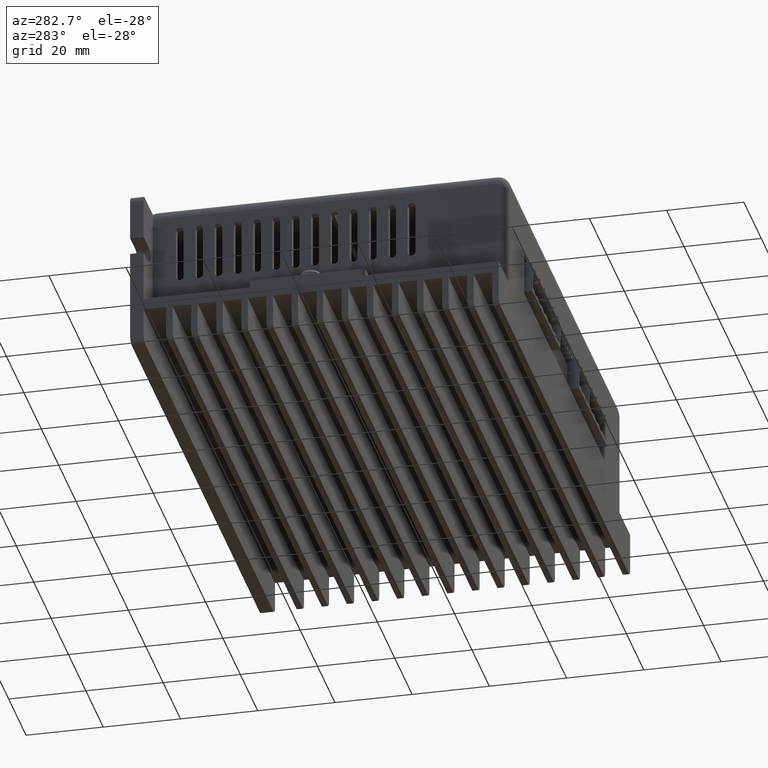
[diagram: clean part render]
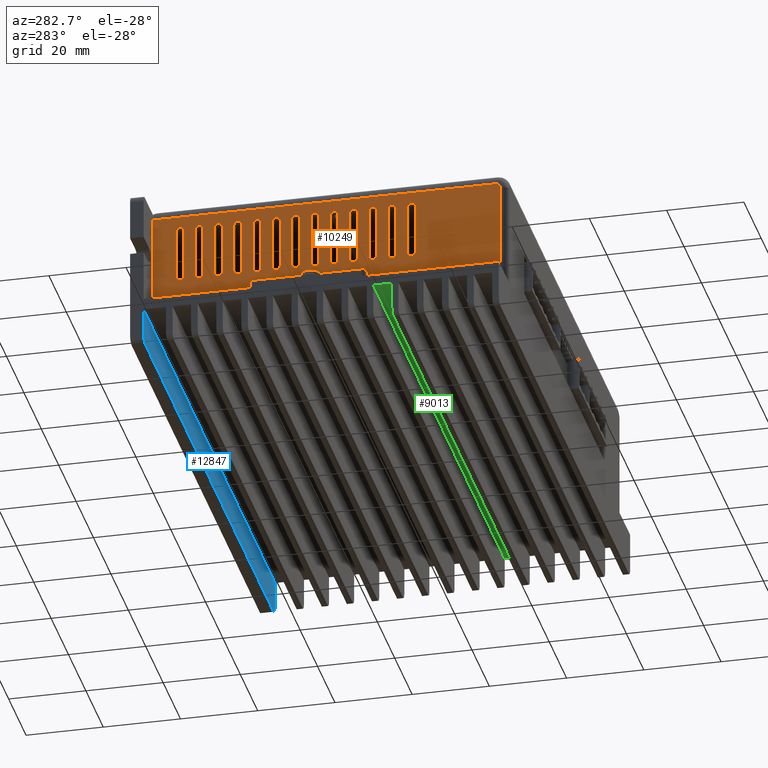
[diagram: same view with three faces highlighted in distinct colors, each labeled with its STEP entity id]
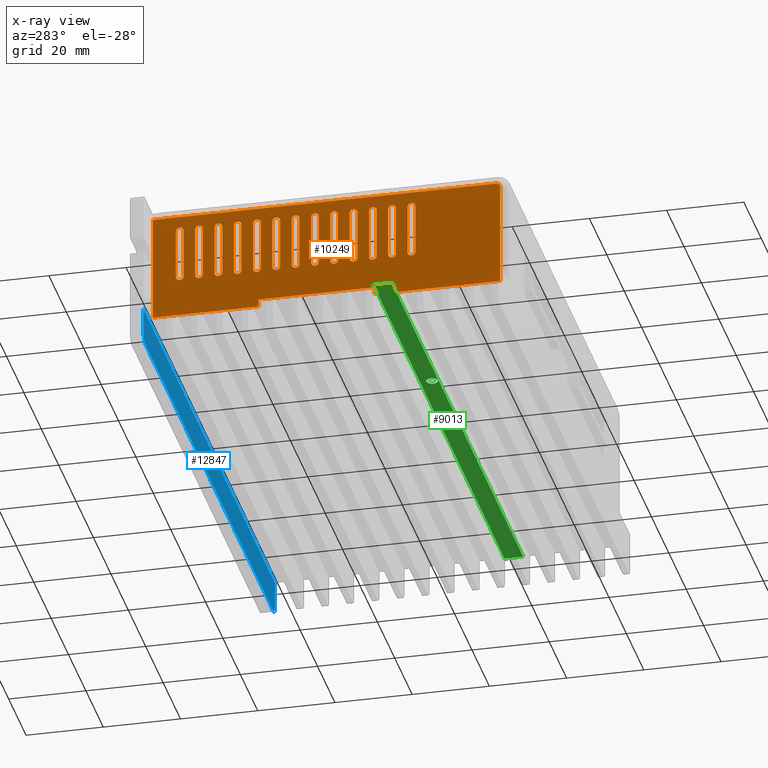
[diagram: x-ray of the same camera — body ghosted, the three highlighted faces saturated]
A machine part, auxiliary view with three faces highlighted in distinct colors.
The next image is the same camera in x-ray (body ghosted, the three faces saturated) — at least one of them is partly hidden behind the body in this view.
Their STEP definitions:

[orange] entity #10249 — the highlighted planar face has unit normal (-1, 0, 0).
#80 = EDGE_CURVE ( 'NONE', #12509, #4934, #51619, .T. ) ;
#248 = ORIENTED_EDGE ( 'NONE', *, *, #12798, .T. ) ;
#265 = ORIENTED_EDGE ( 'NONE', *, *, #8197, .T. ) ;
#309 = AXIS2_PLACEMENT_3D ( 'NONE', #28040, #31436, #53550 ) ;
#347 = CARTESIAN_POINT ( 'NONE',  ( -2.559055118110267600, -1.751968503936953900, -0.1574803149606290000 ) ) ;
#448 = DIRECTION ( 'NONE',  ( 0.0000000000000000000, 0.0000000000000000000, 1.000000000000000000 ) ) ;
#532 = ORIENTED_EDGE ( 'NONE', *, *, #19628, .T. ) ;
#636 = ORIENTED_EDGE ( 'NONE', *, *, #38316, .T. ) ;
#697 = ORIENTED_EDGE ( 'NONE', *, *, #33170, .T. ) ;
#705 = CARTESIAN_POINT ( 'NONE',  ( -2.559055118110235200, -1.734489167320140600, -0.1265175243482680200 ) ) ;
#816 = VERTEX_POINT ( 'NONE', #1440 ) ;
#971 = CARTESIAN_POINT ( 'NONE',  ( -2.559055118110207200, 0.7283464566928840000, -0.2362204724409449100 ) ) ;
#1271 = VECTOR ( 'NONE', #30748, 39.37007874015748100 ) ;
#1308 = DIRECTION ( 'NONE',  ( 0.0000000000000000000, 0.0000000000000000000, 1.000000000000000000 ) ) ;
#1328 = DIRECTION ( 'NONE',  ( 0.0000000000000000000, 0.0000000000000000000, 1.000000000000000000 ) ) ;
#1416 = CARTESIAN_POINT ( 'NONE',  ( -2.559055118110235200, -1.750444749665914800, -0.1481625983188392100 ) ) ;
#1440 = CARTESIAN_POINT ( 'NONE',  ( -2.559055118110221000, -0.2165354330708954300, -0.7874015748031496500 ) ) ;
#1498 = CARTESIAN_POINT ( 'NONE',  ( -2.559055118110207200, 1.515748031496033900, -0.2755905511811022600 ) ) ;
#1553 = VERTEX_POINT ( 'NONE', #25614 ) ;
#1582 = VECTOR ( 'NONE', #36986, 39.37007874015748100 ) ;
#1674 = LINE ( 'NONE', #16837, #31895 ) ;
#1760 = DIRECTION ( 'NONE',  ( 0.0000000000000000000, 0.0000000000000000000, 1.000000000000000000 ) ) ;
#1922 = EDGE_LOOP ( 'NONE', ( #12397, #46501, #5533, #47769, #248 ) ) ;
#1932 = ORIENTED_EDGE ( 'NONE', *, *, #37069, .T. ) ;
#2015 = CARTESIAN_POINT ( 'NONE',  ( -2.559055118110221000, -0.8070866141732577800, -0.7874015748031496500 ) ) ;
#2163 = ORIENTED_EDGE ( 'NONE', *, *, #30042, .T. ) ;
#2186 = LINE ( 'NONE', #45858, #40477 ) ;
#2187 = CARTESIAN_POINT ( 'NONE',  ( -2.559055118110221000, -0.4133858267716829000, -0.7874015748031496500 ) ) ;
#2259 = ORIENTED_EDGE ( 'NONE', *, *, #46590, .T. ) ;
#2312 = EDGE_CURVE ( 'NONE', #43673, #34380, #38569, .T. ) ;
#2317 = ORIENTED_EDGE ( 'NONE', *, *, #41120, .T. ) ;
#2336 = EDGE_CURVE ( 'NONE', #36407, #41542, #5703, .T. ) ;
#2344 = VECTOR ( 'NONE', #21528, 39.37007874015748100 ) ;
#2426 = CARTESIAN_POINT ( 'NONE',  ( -2.559055118110234800, 1.791338582677136200, -0.01574803149606303400 ) ) ;
#2508 = LINE ( 'NONE', #48767, #23958 ) ;
#2545 = ORIENTED_EDGE ( 'NONE', *, *, #44015, .T. ) ;
#2609 = LINE ( 'NONE', #25721, #45555 ) ;
#2886 = CARTESIAN_POINT ( 'NONE',  ( -2.559055118110221000, 0.09842519685036432700, -0.7874015748031486500 ) ) ;
#3094 = EDGE_CURVE ( 'NONE', #26930, #52527, #34490, .T. ) ;
#3212 = CARTESIAN_POINT ( 'NONE',  ( -2.559055118110221000, 0.1771653543306793100, -0.2755905511811022600 ) ) ;
#3248 = AXIS2_PLACEMENT_3D ( 'NONE', #53227, #40837, #14773 ) ;
#3301 = EDGE_LOOP ( 'NONE', ( #697, #28910, #8625, #38765 ) ) ;
#3315 = CARTESIAN_POINT ( 'NONE',  ( -2.559055118110234800, 0.7677165354330415200, -0.09606299212598430600 ) ) ;
#3354 = LINE ( 'NONE', #43067, #50360 ) ;
#3358 = CARTESIAN_POINT ( 'NONE',  ( -2.559055118110221000, -0.6889763779527853200, -0.7874015748031496500 ) ) ;
#3414 = AXIS2_PLACEMENT_3D ( 'NONE', #47303, #13522, #47683 ) ;
#3846 = DIRECTION ( 'NONE',  ( 1.000000000000000000, 0.0000000000000000000, 0.0000000000000000000 ) ) ;
#3895 = CARTESIAN_POINT ( 'NONE',  ( -2.559055118110221000, 0.6889763779527264800, -0.7874015748031486500 ) ) ;
#3966 = LINE ( 'NONE', #52166, #1271 ) ;
#4063 = CARTESIAN_POINT ( 'NONE',  ( -2.559055118110234800, 0.7125984251968211500, -0.09606299212598430600 ) ) ;
#4070 = AXIS2_PLACEMENT_3D ( 'NONE', #26378, #13633, #48333 ) ;
#4250 = PLANE ( 'NONE',  #46837 ) ;
#4264 = ORIENTED_EDGE ( 'NONE', *, *, #22894, .T. ) ;
#4303 = VERTEX_POINT ( 'NONE', #3358 ) ;
#4308 = VERTEX_POINT ( 'NONE', #50841 ) ;
#4350 = VECTOR ( 'NONE', #21722, 39.37007874015748100 ) ;
#4434 = DIRECTION ( 'NONE',  ( 0.0000000000000000000, 0.0000000000000000000, 1.000000000000000000 ) ) ;
#4560 = EDGE_CURVE ( 'NONE', #4303, #11930, #10858, .T. ) ;
#4630 = CARTESIAN_POINT ( 'NONE',  ( -2.559055118110234300, 1.791338582677108400, -0.1181102362204724100 ) ) ;
#4757 = EDGE_CURVE ( 'NONE', #32364, #8439, #10187, .T. ) ;
#4837 = ORIENTED_EDGE ( 'NONE', *, *, #30670, .T. ) ;
#4912 = VERTEX_POINT ( 'NONE', #33128 ) ;
#4933 = ORIENTED_EDGE ( 'NONE', *, *, #47665, .T. ) ;
#4934 = VERTEX_POINT ( 'NONE', #46077 ) ;
#5028 = CARTESIAN_POINT ( 'NONE',  ( -2.559055118110235200, -1.729042158598487200, -0.1230750698764731800 ) ) ;
#5034 = DIRECTION ( 'NONE',  ( 0.0000000000000000000, 0.0000000000000000000, -1.000000000000000000 ) ) ;
#5110 = CARTESIAN_POINT ( 'NONE',  ( -2.559055118110207200, -0.4527559055118403100, -0.7874015748031496500 ) ) ;
#5223 = CARTESIAN_POINT ( 'NONE',  ( -2.559055118110234300, -1.721970460568570400, -0.1195481933910893800 ) ) ;
#5237 = VECTOR ( 'NONE', #19826, 39.37007874015748100 ) ;
#5363 = CARTESIAN_POINT ( 'NONE',  ( -2.559055118110221000, 1.555118110236190800, -0.2755905511811022600 ) ) ;
#5520 = CARTESIAN_POINT ( 'NONE',  ( -2.559055118110207200, -0.05905511811026555000, -0.7874015748031496500 ) ) ;
#5533 = ORIENTED_EDGE ( 'NONE', *, *, #24258, .T. ) ;
#5703 = LINE ( 'NONE', #9210, #2344 ) ;
#5926 = AXIS2_PLACEMENT_3D ( 'NONE', #53170, #10258, #39868 ) ;
#5988 = EDGE_CURVE ( 'NONE', #40388, #16519, #8096, .T. ) ;
#6000 = EDGE_CURVE ( 'NONE', #10003, #7217, #54987, .T. ) ;
#6071 = DIRECTION ( 'NONE',  ( 0.0000000000000000000, 0.0000000000000000000, 1.000000000000000000 ) ) ;
#6124 = EDGE_CURVE ( 'NONE', #41542, #1553, #20807, .T. ) ;
#6207 = CARTESIAN_POINT ( 'NONE',  ( -2.559055118110207200, -0.8464566929134153000, -0.2755905511811022600 ) ) ;
#6312 = EDGE_CURVE ( 'NONE', #26166, #19570, #46994, .T. ) ;
#6398 = ORIENTED_EDGE ( 'NONE', *, *, #48146, .F. ) ;
#6440 = CARTESIAN_POINT ( 'NONE',  ( -2.559055118110221000, -0.2165354330708954300, -0.2755905511811022600 ) ) ;
#6506 = CARTESIAN_POINT ( 'NONE',  ( -2.559055118110221000, 0.09842519685036435500, -0.2755905511811022600 ) ) ;
#6583 = LINE ( 'NONE', #39317, #12608 ) ;
#6802 = EDGE_CURVE ( 'NONE', #8439, #18433, #49571, .T. ) ;
#6806 = VERTEX_POINT ( 'NONE', #46009 ) ;
#6928 = DIRECTION ( 'NONE',  ( 0.0000000000000000000, 0.0000000000000000000, 1.000000000000000000 ) ) ;
#6988 = VERTEX_POINT ( 'NONE', #55005 ) ;
#7173 = VERTEX_POINT ( 'NONE', #30399 ) ;
#7213 = DIRECTION ( 'NONE',  ( 1.000000000000000000, 0.0000000000000000000, 0.0000000000000000000 ) ) ;
#7217 = VERTEX_POINT ( 'NONE', #34178 ) ;
#7225 = AXIS2_PLACEMENT_3D ( 'NONE', #53962, #15336, #41387 ) ;
#7363 = CARTESIAN_POINT ( 'NONE',  ( -2.559055118110207200, -0.6496062992126278000, -0.2755905511811022600 ) ) ;
#7459 = CIRCLE ( 'NONE', #45894, 0.03937007874015751400 ) ;
#7616 = DIRECTION ( 'NONE',  ( -0.0000000000000000000, -1.000000000000000000, 0.0000000000000000000 ) ) ;
#7712 = AXIS2_PLACEMENT_3D ( 'NONE', #8610, #51372, #38589 ) ;
#7898 = EDGE_CURVE ( 'NONE', #22184, #9881, #48141, .T. ) ;
#7934 = CARTESIAN_POINT ( 'NONE',  ( -2.559055118110221000, -0.2952755905512105500, -0.7874015748031486500 ) ) ;
#7950 = FACE_BOUND ( 'NONE', #50140, .T. ) ;
#7954 = EDGE_CURVE ( 'NONE', #32024, #39147, #54139, .T. ) ;
#8084 = CARTESIAN_POINT ( 'NONE',  ( -2.559055118110234800, 0.09842519685036428500, -0.09606299212598430600 ) ) ;
#8096 = CIRCLE ( 'NONE', #43217, 0.03937007874015738300 ) ;
#8101 = DIRECTION ( 'NONE',  ( 1.000000000000000000, 0.0000000000000000000, 0.0000000000000000000 ) ) ;
#8197 = EDGE_CURVE ( 'NONE', #17532, #18536, #17839, .T. ) ;
#8263 = CIRCLE ( 'NONE', #7712, 0.03937007874015751400 ) ;
#8270 = CIRCLE ( 'NONE', #23418, 0.03937007874015744500 ) ;
#8439 = VERTEX_POINT ( 'NONE', #14961 ) ;
#8610 = CARTESIAN_POINT ( 'NONE',  ( -2.559055118110207200, 1.318897637795246400, -0.7874015748031496500 ) ) ;
#8625 = ORIENTED_EDGE ( 'NONE', *, *, #55092, .T. ) ;
#8784 = CARTESIAN_POINT ( 'NONE',  ( -2.559055118110207200, 1.122047244094459100, -0.2362204724409447700 ) ) ;
#8909 = DIRECTION ( 'NONE',  ( 0.0000000000000000000, 0.0000000000000000000, 1.000000000000000000 ) ) ;
#8936 = ORIENTED_EDGE ( 'NONE', *, *, #30950, .T. ) ;
#9055 = VERTEX_POINT ( 'NONE', #42271 ) ;
#9158 = DIRECTION ( 'NONE',  ( 0.0000000000000000000, 0.0000000000000000000, 1.000000000000000000 ) ) ;
#9184 = CARTESIAN_POINT ( 'NONE',  ( -2.559055118110234800, -1.749574032939600600, -0.1457981194004215600 ) ) ;
#9210 = CARTESIAN_POINT ( 'NONE',  ( -2.559055118110234800, 0.2952755905511518800, -0.09606299212598430600 ) ) ;
#9305 = LINE ( 'NONE', #3315, #48194 ) ;
#9341 = DIRECTION ( 'NONE',  ( 1.000000000000000000, 0.0000000000000000000, 0.0000000000000000000 ) ) ;
#9375 = AXIS2_PLACEMENT_3D ( 'NONE', #17291, #21755, #43513 ) ;
#9385 = VERTEX_POINT ( 'NONE', #52914 ) ;
#9387 = EDGE_CURVE ( 'NONE', #26210, #26459, #20390, .T. ) ;
#9411 = CARTESIAN_POINT ( 'NONE',  ( -2.559055118110234800, 0.9645669291338291300, -0.09606299212598430600 ) ) ;
#9458 = EDGE_LOOP ( 'NONE', ( #54434, #15582, #8936, #23255, #265 ) ) ;
#9511 = DIRECTION ( 'NONE',  ( 0.0000000000000000000, 0.0000000000000000000, 1.000000000000000000 ) ) ;
#9513 = CARTESIAN_POINT ( 'NONE',  ( -2.559055118110221000, 1.161417322834616700, -0.2755905511811022600 ) ) ;
#9535 = EDGE_CURVE ( 'NONE', #13638, #30891, #30390, .T. ) ;
#9618 = DIRECTION ( 'NONE',  ( 0.0000000000000000000, 0.0000000000000000000, 1.000000000000000000 ) ) ;
#9691 = EDGE_CURVE ( 'NONE', #34380, #51776, #12975, .T. ) ;
#9881 = VERTEX_POINT ( 'NONE', #2187 ) ;
#9885 = LINE ( 'NONE', #4063, #30617 ) ;
#9919 = DIRECTION ( 'NONE',  ( 1.000000000000000000, 0.0000000000000000000, 0.0000000000000000000 ) ) ;
#9962 = EDGE_CURVE ( 'NONE', #51952, #53671, #37458, .T. ) ;
#10003 = VERTEX_POINT ( 'NONE', #40111 ) ;
#10187 = CIRCLE ( 'NONE', #14042, 0.03937007874015751400 ) ;
#10190 = EDGE_CURVE ( 'NONE', #7173, #9385, #9305, .T. ) ;
#10249 = ADVANCED_FACE ( 'NONE', ( #46833, #22642, #38115, #34083, #15297, #50893, #25351, #32715, #29381, #13954, #19334, #7950, #11258, #55557 ), #4250, .T. ) ;
#10258 = DIRECTION ( 'NONE',  ( 1.000000000000000000, 0.0000000000000000000, 0.0000000000000000000 ) ) ;
#10288 = EDGE_CURVE ( 'NONE', #36078, #26930, #6583, .T. ) ;
#10858 = CIRCLE ( 'NONE', #18731, 0.03937007874015751400 ) ;
#10932 = EDGE_CURVE ( 'NONE', #25470, #36078, #9885, .T. ) ;
#11042 = CARTESIAN_POINT ( 'NONE',  ( -2.559055118110234800, -0.8858267716535727100, -0.09606299212598430600 ) ) ;
#11258 = FACE_BOUND ( 'NONE', #30401, .T. ) ;
#11289 = CIRCLE ( 'NONE', #3248, 0.03937007874015738300 ) ;
#11361 = EDGE_LOOP ( 'NONE', ( #33944, #49486, #532, #26530 ) ) ;
#11365 = DIRECTION ( 'NONE',  ( 1.000000000000000000, -0.0000000000000000000, 0.0000000000000000000 ) ) ;
#11445 = DIRECTION ( 'NONE',  ( 1.000000000000000000, -0.0000000000000000000, 0.0000000000000000000 ) ) ;
#11496 = EDGE_CURVE ( 'NONE', #20573, #32364, #29225, .T. ) ;
#11782 = ORIENTED_EDGE ( 'NONE', *, *, #37200, .T. ) ;
#11803 = DIRECTION ( 'NONE',  ( -0.0000000000000000000, -0.0000000000000000000, -1.000000000000000000 ) ) ;
#11865 = VECTOR ( 'NONE', #52339, 39.37007874015748100 ) ;
#11930 = VERTEX_POINT ( 'NONE', #46355 ) ;
#12051 = CARTESIAN_POINT ( 'NONE',  ( -2.559055118110221000, 1.476377952755875800, -0.7874015748031496500 ) ) ;
#12107 = CARTESIAN_POINT ( 'NONE',  ( -2.559055118110221000, 1.555118110236191300, -0.7874015748031496500 ) ) ;
#12327 = ORIENTED_EDGE ( 'NONE', *, *, #9691, .T. ) ;
#12397 = ORIENTED_EDGE ( 'NONE', *, *, #36405, .T. ) ;
#12509 = VERTEX_POINT ( 'NONE', #54343 ) ;
#12568 = CARTESIAN_POINT ( 'NONE',  ( -2.559055118110234800, -0.4921259842519979400, -0.09606299212598430600 ) ) ;
#12579 = CIRCLE ( 'NONE', #49351, 0.03937007874015738300 ) ;
#12608 = VECTOR ( 'NONE', #22226, 39.37007874015748100 ) ;
#12798 = EDGE_CURVE ( 'NONE', #11930, #6988, #23772, .T. ) ;
#12800 = ORIENTED_EDGE ( 'NONE', *, *, #51771, .T. ) ;
#12932 = CARTESIAN_POINT ( 'NONE',  ( -2.559055118110221000, 1.279527559055088700, -0.2755905511811023200 ) ) ;
#12975 = CIRCLE ( 'NONE', #42491, 0.03937007874015738300 ) ;
#13107 = AXIS2_PLACEMENT_3D ( 'NONE', #28422, #11365, #14935 ) ;
#13217 = VERTEX_POINT ( 'NONE', #29382 ) ;
#13235 = CARTESIAN_POINT ( 'NONE',  ( -2.559055118110207200, -0.2559055118110529800, -0.7874015748031496500 ) ) ;
#13244 = CIRCLE ( 'NONE', #27725, 0.03937007874015738300 ) ;
#13487 = CARTESIAN_POINT ( 'NONE',  ( -2.559055118110207200, -0.6496062992126278000, -0.7874015748031496500 ) ) ;
#13494 = VERTEX_POINT ( 'NONE', #40220 ) ;
#13522 = DIRECTION ( 'NONE',  ( 1.000000000000000000, -0.0000000000000000000, 0.0000000000000000000 ) ) ;
#13528 = CIRCLE ( 'NONE', #14005, 0.03937007874015751400 ) ;
#13633 = DIRECTION ( 'NONE',  ( 1.000000000000000000, 0.0000000000000000000, 0.0000000000000000000 ) ) ;
#13638 = VERTEX_POINT ( 'NONE', #16593 ) ;
#13747 = DIRECTION ( 'NONE',  ( -0.0000000000000000000, -1.000000000000000000, -0.0000000000000000000 ) ) ;
#13816 = CARTESIAN_POINT ( 'NONE',  ( -2.559055118110207200, 0.5314960629920967300, -0.2755905511811022600 ) ) ;
#13954 = FACE_BOUND ( 'NONE', #35525, .T. ) ;
#14005 = AXIS2_PLACEMENT_3D ( 'NONE', #13235, #34239, #21454 ) ;
#14042 = AXIS2_PLACEMENT_3D ( 'NONE', #27137, #9919, #5034 ) ;
#14095 = ORIENTED_EDGE ( 'NONE', *, *, #80, .T. ) ;
#14399 = AXIS2_PLACEMENT_3D ( 'NONE', #54671, #3846, #33675 ) ;
#14595 = DIRECTION ( 'NONE',  ( -0.0000000000000000000, -0.0000000000000000000, -1.000000000000000000 ) ) ;
#14628 = LINE ( 'NONE', #44357, #52903 ) ;
#14686 = VERTEX_POINT ( 'NONE', #27682 ) ;
#14773 = DIRECTION ( 'NONE',  ( 0.0000000000000000000, 0.0000000000000000000, 1.000000000000000000 ) ) ;
#14935 = DIRECTION ( 'NONE',  ( 0.0000000000000000000, 0.0000000000000000000, 1.000000000000000000 ) ) ;
#14961 = CARTESIAN_POINT ( 'NONE',  ( -2.559055118110207200, 1.122047244094459100, -0.8267716535433071700 ) ) ;
#15268 = EDGE_CURVE ( 'NONE', #53191, #42088, #40227, .T. ) ;
#15297 = FACE_BOUND ( 'NONE', #38943, .T. ) ;
#15336 = DIRECTION ( 'NONE',  ( 1.000000000000000000, -0.0000000000000000000, 0.0000000000000000000 ) ) ;
#15582 = ORIENTED_EDGE ( 'NONE', *, *, #5988, .T. ) ;
#15628 = DIRECTION ( 'NONE',  ( 1.000000000000000000, 0.0000000000000000000, 0.0000000000000000000 ) ) ;
#16112 = EDGE_CURVE ( 'NONE', #816, #54475, #3354, .T. ) ;
#16141 = EDGE_CURVE ( 'NONE', #18536, #40388, #1674, .T. ) ;
#16229 = CARTESIAN_POINT ( 'NONE',  ( -2.559055118110234800, 1.555118110236190800, -0.09606299212598430600 ) ) ;
#16342 = CIRCLE ( 'NONE', #309, 0.03937007874015751400 ) ;
#16446 = ORIENTED_EDGE ( 'NONE', *, *, #24530, .T. ) ;
#16519 = VERTEX_POINT ( 'NONE', #25726 ) ;
#16524 = ORIENTED_EDGE ( 'NONE', *, *, #52959, .T. ) ;
#16550 = LINE ( 'NONE', #19200, #36571 ) ;
#16586 = EDGE_CURVE ( 'NONE', #9881, #6806, #55349, .T. ) ;
#16593 = CARTESIAN_POINT ( 'NONE',  ( -2.559055118110221000, -0.6102362204724701700, -0.2755905511811022600 ) ) ;
#16787 = CIRCLE ( 'NONE', #23520, 0.03937007874015751400 ) ;
#16837 = CARTESIAN_POINT ( 'NONE',  ( -2.559055118110234800, -0.8070866141732576700, -0.09606299212598430600 ) ) ;
#17173 = CARTESIAN_POINT ( 'NONE',  ( -2.559055118110221000, 0.1771653543306793100, -0.7874015748031496500 ) ) ;
#17224 = CARTESIAN_POINT ( 'NONE',  ( -2.559055118110221000, 1.082677165354301300, -0.7874015748031496500 ) ) ;
#17291 = CARTESIAN_POINT ( 'NONE',  ( -2.559055118110207200, 1.515748031496033900, -0.7874015748031496500 ) ) ;
#17318 = AXIS2_PLACEMENT_3D ( 'NONE', #44508, #33055, #53129 ) ;
#17368 = VECTOR ( 'NONE', #44817, 39.37007874015748100 ) ;
#17466 = ORIENTED_EDGE ( 'NONE', *, *, #44435, .T. ) ;
#17474 = EDGE_LOOP ( 'NONE', ( #26714, #22308, #47910, #54735, #27726, #636, #6398, #32205, #51458 ) ) ;
#17532 = VERTEX_POINT ( 'NONE', #46038 ) ;
#17839 = CIRCLE ( 'NONE', #41158, 0.03937007874015765300 ) ;
#17959 = ORIENTED_EDGE ( 'NONE', *, *, #23738, .T. ) ;
#18154 = CARTESIAN_POINT ( 'NONE',  ( -2.559055118110235200, -1.751533145573807700, -0.1516937390262550800 ) ) ;
#18330 = CARTESIAN_POINT ( 'NONE',  ( -2.559055118110235200, -1.717251227736289200, -0.1182866763648655900 ) ) ;
#18354 = DIRECTION ( 'NONE',  ( 1.000000000000000000, 0.0000000000000000000, 0.0000000000000000000 ) ) ;
#18417 = LINE ( 'NONE', #40755, #1582 ) ;
#18433 = VERTEX_POINT ( 'NONE', #18559 ) ;
#18536 = VERTEX_POINT ( 'NONE', #2015 ) ;
#18540 = DIRECTION ( 'NONE',  ( 0.0000000000000000000, 0.0000000000000000000, -1.000000000000000000 ) ) ;
#18559 = CARTESIAN_POINT ( 'NONE',  ( -2.559055118110221000, 1.161417322834616500, -0.7874015748031486500 ) ) ;
#18585 = LINE ( 'NONE', #12568, #11865 ) ;
#18620 = CARTESIAN_POINT ( 'NONE',  ( -2.559055118110207200, -0.05905511811026555000, -0.8267716535433071700 ) ) ;
#18731 = AXIS2_PLACEMENT_3D ( 'NONE', #13487, #47819, #52485 ) ;
#18998 = CARTESIAN_POINT ( 'NONE',  ( -2.559055118110207200, -0.4527559055118403100, -0.2755905511811022600 ) ) ;
#19104 = DIRECTION ( 'NONE',  ( -0.0000000000000000000, -0.0000000000000000000, -1.000000000000000000 ) ) ;
#19196 = CARTESIAN_POINT ( 'NONE',  ( -2.559055118110221000, -0.4921259842519979400, -0.7874015748031486500 ) ) ;
#19200 = CARTESIAN_POINT ( 'NONE',  ( -2.559055118110234800, 1.476377952755875800, -0.09606299212598430600 ) ) ;
#19212 = EDGE_CURVE ( 'NONE', #22042, #13217, #34847, .T. ) ;
#19334 = FACE_BOUND ( 'NONE', #28016, .T. ) ;
#19427 = VERTEX_POINT ( 'NONE', #3212 ) ;
#19519 = EDGE_CURVE ( 'NONE', #42088, #35314, #35496, .T. ) ;
#19528 = EDGE_CURVE ( 'NONE', #9385, #31457, #23362, .T. ) ;
#19570 = VERTEX_POINT ( 'NONE', #51795 ) ;
#19628 = EDGE_CURVE ( 'NONE', #39176, #45344, #2609, .T. ) ;
#19777 = DIRECTION ( 'NONE',  ( 0.0000000000000000000, 0.0000000000000000000, 1.000000000000000000 ) ) ;
#19826 = DIRECTION ( 'NONE',  ( 0.0000000000000000000, 0.0000000000000000000, 1.000000000000000000 ) ) ;
#19943 = EDGE_LOOP ( 'NONE', ( #37078, #37148, #22070, #37047, #38460 ) ) ;
#20033 = CARTESIAN_POINT ( 'NONE',  ( -2.559055118110234800, -0.6102362204724701700, -0.09606299212598430600 ) ) ;
#20217 = CARTESIAN_POINT ( 'NONE',  ( -2.559055118110234800, 0.7125984251968211500, -1.220472440944881900 ) ) ;
#20237 = CARTESIAN_POINT ( 'NONE',  ( -2.559055118110207200, -0.8464566929134153000, -0.7874015748031496500 ) ) ;
#20267 = DIRECTION ( 'NONE',  ( 0.0000000000000000000, 0.0000000000000000000, -1.000000000000000000 ) ) ;
#20390 = CIRCLE ( 'NONE', #54713, 0.03937007874015751400 ) ;
#20486 = DIRECTION ( 'NONE',  ( -0.0000000000000000000, -0.0000000000000000000, -1.000000000000000000 ) ) ;
#20541 = DIRECTION ( 'NONE',  ( 0.0000000000000000000, 0.0000000000000000000, -1.000000000000000000 ) ) ;
#20572 = DIRECTION ( 'NONE',  ( 0.0000000000000000000, 0.0000000000000000000, 1.000000000000000000 ) ) ;
#20573 = VERTEX_POINT ( 'NONE', #36657 ) ;
#20807 = CIRCLE ( 'NONE', #32760, 0.03937007874015751400 ) ;
#21361 = DIRECTION ( 'NONE',  ( 0.0000000000000000000, 0.0000000000000000000, 1.000000000000000000 ) ) ;
#21454 = DIRECTION ( 'NONE',  ( 0.0000000000000000000, 0.0000000000000000000, 1.000000000000000000 ) ) ;
#21528 = DIRECTION ( 'NONE',  ( -0.0000000000000000000, -0.0000000000000000000, -1.000000000000000000 ) ) ;
#21722 = DIRECTION ( 'NONE',  ( -0.0000000000000000000, -0.0000000000000000000, -1.000000000000000000 ) ) ;
#21755 = DIRECTION ( 'NONE',  ( 1.000000000000000000, 0.0000000000000000000, 0.0000000000000000000 ) ) ;
#22042 = VERTEX_POINT ( 'NONE', #39839 ) ;
#22070 = ORIENTED_EDGE ( 'NONE', *, *, #52183, .T. ) ;
#22073 = CARTESIAN_POINT ( 'NONE',  ( -2.559055118110234300, -1.737496953399756400, -0.1290606951162025200 ) ) ;
#22127 = AXIS2_PLACEMENT_3D ( 'NONE', #44329, #22927, #31576 ) ;
#22184 = VERTEX_POINT ( 'NONE', #19196 ) ;
#22226 = DIRECTION ( 'NONE',  ( -0.0000000000000000000, -1.000000000000000000, 0.0000000000000000000 ) ) ;
#22231 = DIRECTION ( 'NONE',  ( 0.0000000000000000000, 0.0000000000000000000, -1.000000000000000000 ) ) ;
#22308 = ORIENTED_EDGE ( 'NONE', *, *, #10288, .T. ) ;
#22375 = AXIS2_PLACEMENT_3D ( 'NONE', #39084, #31193, #39998 ) ;
#22405 = ORIENTED_EDGE ( 'NONE', *, *, #39590, .T. ) ;
#22432 = CARTESIAN_POINT ( 'NONE',  ( -2.559055118110235200, -1.749031037788109300, -0.1445386195744914600 ) ) ;
#22511 = CARTESIAN_POINT ( 'NONE',  ( -2.559055118110234800, 0.8858267716535140900, -0.09606299212598430600 ) ) ;
#22541 = ORIENTED_EDGE ( 'NONE', *, *, #7898, .T. ) ;
#22564 = LINE ( 'NONE', #11042, #30646 ) ;
#22642 = FACE_BOUND ( 'NONE', #1922, .T. ) ;
#22766 = LINE ( 'NONE', #27988, #38236 ) ;
#22804 = CARTESIAN_POINT ( 'NONE',  ( -2.559055118110240100, -1.712598425196888000, -0.1181102362204881900 ) ) ;
#22894 = EDGE_CURVE ( 'NONE', #26474, #4912, #48093, .T. ) ;
#22917 = CARTESIAN_POINT ( 'NONE',  ( -2.559055118110221000, 1.358267716535404200, -0.7874015748031496500 ) ) ;
#22927 = DIRECTION ( 'NONE',  ( 1.000000000000000000, -0.0000000000000000000, 0.0000000000000000000 ) ) ;
#23009 = CARTESIAN_POINT ( 'NONE',  ( -2.559055118110234800, 0.6889763779527264800, -0.09606299212598430600 ) ) ;
#23255 = ORIENTED_EDGE ( 'NONE', *, *, #52564, .T. ) ;
#23281 = CARTESIAN_POINT ( 'NONE',  ( -2.559055118110221000, 0.6889763779527264800, -0.2755905511811022600 ) ) ;
#23362 = CIRCLE ( 'NONE', #3414, 0.03937007874015738300 ) ;
#23418 = AXIS2_PLACEMENT_3D ( 'NONE', #36230, #53849, #23819 ) ;
#23520 = AXIS2_PLACEMENT_3D ( 'NONE', #37624, #33309, #20541 ) ;
#23705 = ORIENTED_EDGE ( 'NONE', *, *, #32022, .T. ) ;
#23738 = EDGE_CURVE ( 'NONE', #35314, #10003, #38535, .T. ) ;
#23769 = VERTEX_POINT ( 'NONE', #12051 ) ;
#23772 = CIRCLE ( 'NONE', #5926, 0.03937007874015751400 ) ;
#23819 = DIRECTION ( 'NONE',  ( 0.0000000000000000000, 0.0000000000000000000, -1.000000000000000000 ) ) ;
#23958 = VECTOR ( 'NONE', #27916, 39.37007874015748100 ) ;
#24258 = EDGE_CURVE ( 'NONE', #30891, #4303, #44512, .T. ) ;
#24432 = ORIENTED_EDGE ( 'NONE', *, *, #39992, .T. ) ;
#24530 = EDGE_CURVE ( 'NONE', #39147, #44631, #8263, .T. ) ;
#25196 = DIRECTION ( 'NONE',  ( -0.0000000000000000000, -0.0000000000000000000, -1.000000000000000000 ) ) ;
#25351 = FACE_BOUND ( 'NONE', #31943, .T. ) ;
#25428 = VECTOR ( 'NONE', #33531, 39.37007874015748100 ) ;
#25462 = CARTESIAN_POINT ( 'NONE',  ( -2.559055118110221000, 1.358267716535404200, -0.2755905511811022600 ) ) ;
#25470 = VERTEX_POINT ( 'NONE', #20217 ) ;
#25509 = DIRECTION ( 'NONE',  ( 1.000000000000000000, -0.0000000000000000000, 0.0000000000000000000 ) ) ;
#25519 = CARTESIAN_POINT ( 'NONE',  ( -2.559055118110207200, 0.7283464566928840000, -0.2755905511811022600 ) ) ;
#25604 = VERTEX_POINT ( 'NONE', #45729 ) ;
#25614 = CARTESIAN_POINT ( 'NONE',  ( -2.559055118110207200, 0.3346456692913094000, -0.8267716535433071700 ) ) ;
#25721 = CARTESIAN_POINT ( 'NONE',  ( -2.559055118110234800, -0.2952755905512106100, -0.09606299212598430600 ) ) ;
#25726 = CARTESIAN_POINT ( 'NONE',  ( -2.559055118110207200, -0.8464566929134153000, -0.2362204724409449100 ) ) ;
#25876 = LINE ( 'NONE', #20033, #51410 ) ;
#26166 = VERTEX_POINT ( 'NONE', #29535 ) ;
#26210 = VERTEX_POINT ( 'NONE', #5363 ) ;
#26278 = ORIENTED_EDGE ( 'NONE', *, *, #6802, .T. ) ;
#26378 = CARTESIAN_POINT ( 'NONE',  ( -2.559055118110207200, 0.3346456692913094000, -0.7874015748031496500 ) ) ;
#26399 = CARTESIAN_POINT ( 'NONE',  ( -2.559055118110235200, -1.731251599634604500, -0.1243958518905019800 ) ) ;
#26442 = EDGE_CURVE ( 'NONE', #53671, #7173, #42274, .T. ) ;
#26457 = DIRECTION ( 'NONE',  ( 0.0000000000000000000, 0.0000000000000000000, 1.000000000000000000 ) ) ;
#26459 = VERTEX_POINT ( 'NONE', #45053 ) ;
#26474 = VERTEX_POINT ( 'NONE', #46003 ) ;
#26530 = ORIENTED_EDGE ( 'NONE', *, *, #39251, .T. ) ;
#26664 = DIRECTION ( 'NONE',  ( 1.000000000000000000, -0.0000000000000000000, 0.0000000000000000000 ) ) ;
#26714 = ORIENTED_EDGE ( 'NONE', *, *, #10932, .T. ) ;
#26739 = AXIS2_PLACEMENT_3D ( 'NONE', #41982, #29579, #50636 ) ;
#26930 = VERTEX_POINT ( 'NONE', #48232 ) ;
#27006 = CARTESIAN_POINT ( 'NONE',  ( -2.559055118110234800, -0.4133858267716829000, -0.09606299212598430600 ) ) ;
#27054 = ORIENTED_EDGE ( 'NONE', *, *, #53681, .T. ) ;
#27056 = EDGE_CURVE ( 'NONE', #13494, #30914, #30147, .T. ) ;
#27137 = CARTESIAN_POINT ( 'NONE',  ( -2.559055118110207200, 1.122047244094459100, -0.7874015748031496500 ) ) ;
#27682 = CARTESIAN_POINT ( 'NONE',  ( -2.559055118110221000, 0.5708661417322540300, -0.7874015748031496500 ) ) ;
#27725 = AXIS2_PLACEMENT_3D ( 'NONE', #51903, #39126, #9158 ) ;
#27726 = ORIENTED_EDGE ( 'NONE', *, *, #6312, .T. ) ;
#27916 = DIRECTION ( 'NONE',  ( -0.0000000000000000000, -1.000000000000000000, 0.0000000000000000000 ) ) ;
#27925 = VERTEX_POINT ( 'NONE', #18620 ) ;
#27988 = CARTESIAN_POINT ( 'NONE',  ( -2.559055118110234800, 0.1771653543306793100, -0.09606299212598430600 ) ) ;
#28016 = EDGE_LOOP ( 'NONE', ( #4933, #1932, #37267, #43427, #43501, #26278 ) ) ;
#28040 = CARTESIAN_POINT ( 'NONE',  ( -2.559055118110207200, 1.515748031496033900, -0.7874015748031496500 ) ) ;
#28094 = CARTESIAN_POINT ( 'NONE',  ( -2.559055118110221000, 0.2952755905511518800, -0.2755905511811022600 ) ) ;
#28422 = CARTESIAN_POINT ( 'NONE',  ( -2.559055118110207200, 0.3346456692913094000, -0.2755905511811022600 ) ) ;
#28437 = ORIENTED_EDGE ( 'NONE', *, *, #7954, .T. ) ;
#28630 = CARTESIAN_POINT ( 'NONE',  ( -2.559055118110234800, -1.751968503937037200, -0.09606299212598430600 ) ) ;
#28846 = CARTESIAN_POINT ( 'NONE',  ( -2.559055118110221000, -0.8070866141732577800, -0.2755905511811022600 ) ) ;
#28910 = ORIENTED_EDGE ( 'NONE', *, *, #32494, .T. ) ;
#29225 = LINE ( 'NONE', #50550, #40631 ) ;
#29234 = AXIS2_PLACEMENT_3D ( 'NONE', #5110, #26664, #9618 ) ;
#29373 = VECTOR ( 'NONE', #13747, 39.37007874015748100 ) ;
#29381 = FACE_BOUND ( 'NONE', #19943, .T. ) ;
#29382 = CARTESIAN_POINT ( 'NONE',  ( -2.559055118110221000, -0.4921259842519979400, -0.2755905511811022600 ) ) ;
#29535 = CARTESIAN_POINT ( 'NONE',  ( -2.559055118110234800, -1.751968503937037200, -1.220472440944881900 ) ) ;
#29579 = DIRECTION ( 'NONE',  ( 1.000000000000000000, 0.0000000000000000000, 0.0000000000000000000 ) ) ;
#29696 = ORIENTED_EDGE ( 'NONE', *, *, #9387, .T. ) ;
#30041 = EDGE_CURVE ( 'NONE', #44024, #37219, #3966, .T. ) ;
#30042 = EDGE_CURVE ( 'NONE', #23769, #9055, #44913, .T. ) ;
#30147 = LINE ( 'NONE', #2426, #17368 ) ;
#30178 = ORIENTED_EDGE ( 'NONE', *, *, #19212, .T. ) ;
#30390 = CIRCLE ( 'NONE', #55051, 0.03937007874015751400 ) ;
#30399 = CARTESIAN_POINT ( 'NONE',  ( -2.559055118110221000, 0.7677165354330415200, -0.7874015748031496500 ) ) ;
#30401 = EDGE_LOOP ( 'NONE', ( #22405, #2163, #51886, #41291, #29696 ) ) ;
#30482 = DIRECTION ( 'NONE',  ( 0.0000000000000000000, 0.0000000000000000000, 1.000000000000000000 ) ) ;
#30535 = EDGE_CURVE ( 'NONE', #48359, #14686, #11289, .T. ) ;
#30617 = VECTOR ( 'NONE', #9511, 39.37007874015748100 ) ;
#30646 = VECTOR ( 'NONE', #19104, 39.37007874015748100 ) ;
#30670 = EDGE_CURVE ( 'NONE', #48190, #26474, #48183, .T. ) ;
#30708 = EDGE_CURVE ( 'NONE', #52728, #20573, #46818, .T. ) ;
#30731 = CIRCLE ( 'NONE', #32724, 0.03937007874015751400 ) ;
#30748 = DIRECTION ( 'NONE',  ( -0.0000000000000000000, -0.0000000000000000000, -1.000000000000000000 ) ) ;
#30798 = CARTESIAN_POINT ( 'NONE',  ( -2.559055118110234300, -1.712598425196876900, -0.1181102362204724300 ) ) ;
#30802 = CIRCLE ( 'NONE', #36511, 0.03937007874015751400 ) ;
#30891 = VERTEX_POINT ( 'NONE', #42886 ) ;
#30914 = VERTEX_POINT ( 'NONE', #4630 ) ;
#30950 = EDGE_CURVE ( 'NONE', #16519, #25604, #13244, .T. ) ;
#31082 = VERTEX_POINT ( 'NONE', #40948 ) ;
#31193 = DIRECTION ( 'NONE',  ( 1.000000000000000000, 0.0000000000000000000, 0.0000000000000000000 ) ) ;
#31436 = DIRECTION ( 'NONE',  ( 1.000000000000000000, 0.0000000000000000000, 0.0000000000000000000 ) ) ;
#31457 = VERTEX_POINT ( 'NONE', #971 ) ;
#31566 = DIRECTION ( 'NONE',  ( 1.000000000000000000, -0.0000000000000000000, 0.0000000000000000000 ) ) ;
#31576 = DIRECTION ( 'NONE',  ( 0.0000000000000000000, 0.0000000000000000000, 1.000000000000000000 ) ) ;
#31673 = ORIENTED_EDGE ( 'NONE', *, *, #19519, .T. ) ;
#31848 = ORIENTED_EDGE ( 'NONE', *, *, #45069, .T. ) ;
#31872 = CARTESIAN_POINT ( 'NONE',  ( -2.559055118110221000, 0.9645669291338291300, -0.2755905511811022600 ) ) ;
#31895 = VECTOR ( 'NONE', #4434, 39.37007874015748100 ) ;
#31943 = EDGE_LOOP ( 'NONE', ( #4837, #4264, #2259, #51955, #34282, #16524 ) ) ;
#32022 = EDGE_CURVE ( 'NONE', #13217, #22184, #18585, .T. ) ;
#32024 = VERTEX_POINT ( 'NONE', #12932 ) ;
#32032 = CARTESIAN_POINT ( 'NONE',  ( -2.559055118110234800, -0.4685039370079032700, -1.220472440944881900 ) ) ;
#32096 = VECTOR ( 'NONE', #26457, 39.37007874015748100 ) ;
#32205 = ORIENTED_EDGE ( 'NONE', *, *, #27056, .F. ) ;
#32263 = CARTESIAN_POINT ( 'NONE',  ( -2.559055118110221000, 0.4921259842519389900, -0.7874015748031486500 ) ) ;
#32364 = VERTEX_POINT ( 'NONE', #17224 ) ;
#32494 = EDGE_CURVE ( 'NONE', #4308, #34361, #51377, .T. ) ;
#32513 = AXIS2_PLACEMENT_3D ( 'NONE', #54265, #15628, #40590 ) ;
#32557 = ORIENTED_EDGE ( 'NONE', *, *, #16586, .T. ) ;
#32563 = AXIS2_PLACEMENT_3D ( 'NONE', #47357, #34927, #8909 ) ;
#32715 = FACE_BOUND ( 'NONE', #3301, .T. ) ;
#32724 = AXIS2_PLACEMENT_3D ( 'NONE', #52899, #44095, #40146 ) ;
#32760 = AXIS2_PLACEMENT_3D ( 'NONE', #40462, #18354, #18540 ) ;
#32761 = CARTESIAN_POINT ( 'NONE',  ( -2.559055118110234800, 0.3740157480314663700, -0.09606299212598430600 ) ) ;
#32945 = DIRECTION ( 'NONE',  ( 0.0000000000000000000, 0.0000000000000000000, 1.000000000000000000 ) ) ;
#33055 = DIRECTION ( 'NONE',  ( 1.000000000000000000, -0.0000000000000000000, 0.0000000000000000000 ) ) ;
#33128 = CARTESIAN_POINT ( 'NONE',  ( -2.559055118110207200, 0.3346456692913094000, -0.2362204724409447700 ) ) ;
#33150 = LINE ( 'NONE', #47527, #48615 ) ;
#33170 = EDGE_CURVE ( 'NONE', #14686, #4308, #33150, .T. ) ;
#33294 = DIRECTION ( 'NONE',  ( 1.000000000000000000, -0.0000000000000000000, 0.0000000000000000000 ) ) ;
#33309 = DIRECTION ( 'NONE',  ( 1.000000000000000000, 0.0000000000000000000, 0.0000000000000000000 ) ) ;
#33431 = LINE ( 'NONE', #30798, #29373 ) ;
#33531 = DIRECTION ( 'NONE',  ( 0.0000000000000000000, 0.0000000000000000000, 1.000000000000000000 ) ) ;
#33675 = DIRECTION ( 'NONE',  ( 0.0000000000000000000, 0.0000000000000000000, -1.000000000000000000 ) ) ;
#33944 = ORIENTED_EDGE ( 'NONE', *, *, #16112, .T. ) ;
#34083 = FACE_BOUND ( 'NONE', #11361, .T. ) ;
#34178 = CARTESIAN_POINT ( 'NONE',  ( -2.559055118110221000, 0.8858267716535140900, -0.7874015748031496500 ) ) ;
#34192 = VERTEX_POINT ( 'NONE', #9513 ) ;
#34239 = DIRECTION ( 'NONE',  ( 1.000000000000000000, -0.0000000000000000000, 0.0000000000000000000 ) ) ;
#34260 = CARTESIAN_POINT ( 'NONE',  ( -2.559055118110234800, -1.822834645669320700, -0.09606299212598430600 ) ) ;
#34282 = ORIENTED_EDGE ( 'NONE', *, *, #6124, .T. ) ;
#34361 = VERTEX_POINT ( 'NONE', #49791 ) ;
#34380 = VERTEX_POINT ( 'NONE', #2886 ) ;
#34490 = LINE ( 'NONE', #51145, #37826 ) ;
#34795 = DIRECTION ( 'NONE',  ( -1.000000000000000000, 0.0000000000000000000, 0.0000000000000000000 ) ) ;
#34847 = CIRCLE ( 'NONE', #45802, 0.03937007874015751400 ) ;
#34927 = DIRECTION ( 'NONE',  ( 1.000000000000000000, -0.0000000000000000000, 0.0000000000000000000 ) ) ;
#35001 = CARTESIAN_POINT ( 'NONE',  ( -2.559055118110234300, -1.743063760566506500, -0.1348586475509197000 ) ) ;
#35314 = VERTEX_POINT ( 'NONE', #31872 ) ;
#35385 = EDGE_CURVE ( 'NONE', #13494, #25470, #2508, .T. ) ;
#35386 = CARTESIAN_POINT ( 'NONE',  ( -2.559055118110235200, -1.741303084522872100, -0.1328262546380427600 ) ) ;
#35441 = CARTESIAN_POINT ( 'NONE',  ( -2.559055118110207200, 0.9251968503936715000, -0.8267716535433071700 ) ) ;
#35496 = LINE ( 'NONE', #9411, #32096 ) ;
#35500 = DIRECTION ( 'NONE',  ( 0.0000000000000000000, 0.0000000000000000000, -1.000000000000000000 ) ) ;
#35525 = EDGE_LOOP ( 'NONE', ( #31673, #17959, #49134, #2545, #38046 ) ) ;
#35567 = VECTOR ( 'NONE', #32945, 39.37007874015748100 ) ;
#35847 = CIRCLE ( 'NONE', #17318, 0.03937007874015751400 ) ;
#35875 = CARTESIAN_POINT ( 'NONE',  ( -2.559055118110221000, 0.2952755905511518800, -0.7874015748031496500 ) ) ;
#35876 = DIRECTION ( 'NONE',  ( 0.0000000000000000000, 0.0000000000000000000, 1.000000000000000000 ) ) ;
#36019 = DIRECTION ( 'NONE',  ( 0.0000000000000000000, 0.0000000000000000000, -1.000000000000000000 ) ) ;
#36078 = VERTEX_POINT ( 'NONE', #46224 ) ;
#36230 = CARTESIAN_POINT ( 'NONE',  ( -2.559055118110207200, -0.2559055118110529800, -0.2755905511811022600 ) ) ;
#36393 = CARTESIAN_POINT ( 'NONE',  ( -2.559055118110221000, 0.3740157480314664800, -0.7874015748031486500 ) ) ;
#36405 = EDGE_CURVE ( 'NONE', #6988, #13638, #25876, .T. ) ;
#36407 = VERTEX_POINT ( 'NONE', #28094 ) ;
#36508 = VERTEX_POINT ( 'NONE', #25462 ) ;
#36511 = AXIS2_PLACEMENT_3D ( 'NONE', #5520, #44311, #35500 ) ;
#36571 = VECTOR ( 'NONE', #20486, 39.37007874015748100 ) ;
#36657 = CARTESIAN_POINT ( 'NONE',  ( -2.559055118110221000, 1.082677165354301300, -0.2755905511811023200 ) ) ;
#36812 = VERTEX_POINT ( 'NONE', #12107 ) ;
#36986 = DIRECTION ( 'NONE',  ( 0.0000000000000000000, 0.0000000000000000000, 1.000000000000000000 ) ) ;
#37047 = ORIENTED_EDGE ( 'NONE', *, *, #9962, .T. ) ;
#37069 = EDGE_CURVE ( 'NONE', #34192, #52728, #44555, .T. ) ;
#37078 = ORIENTED_EDGE ( 'NONE', *, *, #10190, .T. ) ;
#37148 = ORIENTED_EDGE ( 'NONE', *, *, #19528, .T. ) ;
#37200 = EDGE_CURVE ( 'NONE', #44631, #36508, #18417, .T. ) ;
#37219 = VERTEX_POINT ( 'NONE', #53504 ) ;
#37267 = ORIENTED_EDGE ( 'NONE', *, *, #30708, .T. ) ;
#37341 = VECTOR ( 'NONE', #39782, 39.37007874015748100 ) ;
#37458 = LINE ( 'NONE', #23009, #41491 ) ;
#37480 = CARTESIAN_POINT ( 'NONE',  ( -2.559055118110234800, -0.6889763779527853200, -0.09606299212598430600 ) ) ;
#37624 = CARTESIAN_POINT ( 'NONE',  ( -2.559055118110207200, 0.9251968503936715000, -0.7874015748031496500 ) ) ;
#37826 = VECTOR ( 'NONE', #42506, 39.37007874015748100 ) ;
#37850 = CARTESIAN_POINT ( 'NONE',  ( -2.559055118110234800, -0.01968503937010826100, -0.09606299212598430600 ) ) ;
#38046 = ORIENTED_EDGE ( 'NONE', *, *, #15268, .T. ) ;
#38115 = FACE_BOUND ( 'NONE', #47118, .T. ) ;
#38236 = VECTOR ( 'NONE', #6071, 39.37007874015748100 ) ;
#38316 = EDGE_CURVE ( 'NONE', #19570, #31082, #45139, .T. ) ;
#38417 = EDGE_CURVE ( 'NONE', #9055, #36812, #16342, .T. ) ;
#38460 = ORIENTED_EDGE ( 'NONE', *, *, #26442, .T. ) ;
#38535 = CIRCLE ( 'NONE', #48283, 0.03937007874015751400 ) ;
#38569 = LINE ( 'NONE', #8084, #4350 ) ;
#38589 = DIRECTION ( 'NONE',  ( 0.0000000000000000000, 0.0000000000000000000, 1.000000000000000000 ) ) ;
#38765 = ORIENTED_EDGE ( 'NONE', *, *, #30535, .T. ) ;
#38943 = EDGE_LOOP ( 'NONE', ( #14095, #27054, #48621, #2317, #31848 ) ) ;
#38971 = LINE ( 'NONE', #16229, #51093 ) ;
#39029 = DIRECTION ( 'NONE',  ( 0.0000000000000000000, 0.0000000000000000000, -1.000000000000000000 ) ) ;
#39084 = CARTESIAN_POINT ( 'NONE',  ( -2.559055118110207200, 0.1377952755905218800, -0.2755905511811022600 ) ) ;
#39126 = DIRECTION ( 'NONE',  ( 1.000000000000000000, -0.0000000000000000000, 0.0000000000000000000 ) ) ;
#39147 = VERTEX_POINT ( 'NONE', #41559 ) ;
#39176 = VERTEX_POINT ( 'NONE', #42324 ) ;
#39251 = EDGE_CURVE ( 'NONE', #45344, #816, #13528, .T. ) ;
#39317 = CARTESIAN_POINT ( 'NONE',  ( -2.559055118110234800, -1.822834645669320700, -1.141732283464583100 ) ) ;
#39590 = EDGE_CURVE ( 'NONE', #26459, #23769, #16550, .T. ) ;
#39782 = DIRECTION ( 'NONE',  ( -0.0000000000000000000, -0.0000000000000000000, -1.000000000000000000 ) ) ;
#39839 = CARTESIAN_POINT ( 'NONE',  ( -2.559055118110207200, -0.4527559055118403100, -0.2362204724409447700 ) ) ;
#39868 = DIRECTION ( 'NONE',  ( 0.0000000000000000000, 0.0000000000000000000, -1.000000000000000000 ) ) ;
#39969 = DIRECTION ( 'NONE',  ( 1.000000000000000000, 0.0000000000000000000, 0.0000000000000000000 ) ) ;
#39992 = EDGE_CURVE ( 'NONE', #36508, #32024, #30731, .T. ) ;
#39998 = DIRECTION ( 'NONE',  ( 0.0000000000000000000, 0.0000000000000000000, -1.000000000000000000 ) ) ;
#40111 = CARTESIAN_POINT ( 'NONE',  ( -2.559055118110221000, 0.8858267716535140900, -0.2755905511811022600 ) ) ;
#40126 = CARTESIAN_POINT ( 'NONE',  ( -2.559055118110234800, 0.4921259842519389300, -0.09606299212598430600 ) ) ;
#40146 = DIRECTION ( 'NONE',  ( 0.0000000000000000000, 0.0000000000000000000, -1.000000000000000000 ) ) ;
#40220 = CARTESIAN_POINT ( 'NONE',  ( -2.559055118110234800, 1.791338582677136200, -1.220472440944881900 ) ) ;
#40227 = CIRCLE ( 'NONE', #32513, 0.03937007874015751400 ) ;
#40388 = VERTEX_POINT ( 'NONE', #28846 ) ;
#40462 = CARTESIAN_POINT ( 'NONE',  ( -2.559055118110207200, 0.3346456692913094000, -0.7874015748031496500 ) ) ;
#40477 = VECTOR ( 'NONE', #7616, 39.37007874015748100 ) ;
#40590 = DIRECTION ( 'NONE',  ( 0.0000000000000000000, 0.0000000000000000000, -1.000000000000000000 ) ) ;
#40631 = VECTOR ( 'NONE', #25196, 39.37007874015748100 ) ;
#40755 = CARTESIAN_POINT ( 'NONE',  ( -2.559055118110234800, 1.358267716535404200, -0.09606299212598430600 ) ) ;
#40837 = DIRECTION ( 'NONE',  ( 1.000000000000000000, -0.0000000000000000000, 0.0000000000000000000 ) ) ;
#40876 = DIRECTION ( 'NONE',  ( -0.0000000000000000000, -0.0000000000000000000, -1.000000000000000000 ) ) ;
#40948 = CARTESIAN_POINT ( 'NONE',  ( -2.559055118110240100, -1.712598425196888000, -0.1181102362204881900 ) ) ;
#41120 = EDGE_CURVE ( 'NONE', #37219, #27925, #47389, .T. ) ;
#41158 = AXIS2_PLACEMENT_3D ( 'NONE', #20237, #11445, #50269 ) ;
#41291 = ORIENTED_EDGE ( 'NONE', *, *, #46664, .T. ) ;
#41387 = DIRECTION ( 'NONE',  ( 0.0000000000000000000, 0.0000000000000000000, 1.000000000000000000 ) ) ;
#41491 = VECTOR ( 'NONE', #14595, 39.37007874015748100 ) ;
#41542 = VERTEX_POINT ( 'NONE', #35875 ) ;
#41553 = EDGE_CURVE ( 'NONE', #6806, #22042, #35847, .T. ) ;
#41559 = CARTESIAN_POINT ( 'NONE',  ( -2.559055118110221000, 1.279527559055088700, -0.7874015748031486500 ) ) ;
#41982 = CARTESIAN_POINT ( 'NONE',  ( -2.559055118110207200, -0.05905511811026555000, -0.2755905511811022600 ) ) ;
#42040 = DIRECTION ( 'NONE',  ( 0.0000000000000000000, 0.0000000000000000000, 1.000000000000000000 ) ) ;
#42088 = VERTEX_POINT ( 'NONE', #49261 ) ;
#42228 = EDGE_CURVE ( 'NONE', #52527, #26166, #2186, .T. ) ;
#42271 = CARTESIAN_POINT ( 'NONE',  ( -2.559055118110207200, 1.515748031496033900, -0.8267716535433071700 ) ) ;
#42274 = CIRCLE ( 'NONE', #22127, 0.03937007874015738300 ) ;
#42324 = CARTESIAN_POINT ( 'NONE',  ( -2.559055118110221000, -0.2952755905512104400, -0.2755905511811022600 ) ) ;
#42378 = CIRCLE ( 'NONE', #22375, 0.03937007874015744500 ) ;
#42491 = AXIS2_PLACEMENT_3D ( 'NONE', #51228, #25509, #21361 ) ;
#42506 = DIRECTION ( 'NONE',  ( -0.0000000000000000000, -0.0000000000000000000, -1.000000000000000000 ) ) ;
#42696 = EDGE_CURVE ( 'NONE', #54475, #39176, #8270, .T. ) ;
#42886 = CARTESIAN_POINT ( 'NONE',  ( -2.559055118110221000, -0.6889763779527853200, -0.2755905511811023200 ) ) ;
#43067 = CARTESIAN_POINT ( 'NONE',  ( -2.559055118110234800, -0.2165354330708952900, -0.09606299212598430600 ) ) ;
#43154 = DIRECTION ( 'NONE',  ( -0.0000000000000000000, -0.0000000000000000000, -1.000000000000000000 ) ) ;
#43217 = AXIS2_PLACEMENT_3D ( 'NONE', #6207, #44834, #1328 ) ;
#43427 = ORIENTED_EDGE ( 'NONE', *, *, #11496, .T. ) ;
#43501 = ORIENTED_EDGE ( 'NONE', *, *, #4757, .T. ) ;
#43513 = DIRECTION ( 'NONE',  ( 0.0000000000000000000, 0.0000000000000000000, -1.000000000000000000 ) ) ;
#43673 = VERTEX_POINT ( 'NONE', #6506 ) ;
#43832 = CARTESIAN_POINT ( 'NONE',  ( -2.559055118110236600, -1.751968503936965700, -0.1551781467230393100 ) ) ;
#43952 = CIRCLE ( 'NONE', #26739, 0.03937007874015744500 ) ;
#44015 = EDGE_CURVE ( 'NONE', #7217, #53191, #16787, .T. ) ;
#44024 = VERTEX_POINT ( 'NONE', #55228 ) ;
#44095 = DIRECTION ( 'NONE',  ( 1.000000000000000000, 0.0000000000000000000, 0.0000000000000000000 ) ) ;
#44311 = DIRECTION ( 'NONE',  ( 1.000000000000000000, 0.0000000000000000000, 0.0000000000000000000 ) ) ;
#44329 = CARTESIAN_POINT ( 'NONE',  ( -2.559055118110207200, 0.7283464566928840000, -0.7874015748031496500 ) ) ;
#44357 = CARTESIAN_POINT ( 'NONE',  ( -2.559055118110234800, 1.161417322834616700, -0.09606299212598430600 ) ) ;
#44435 = EDGE_CURVE ( 'NONE', #51776, #19427, #22766, .T. ) ;
#44508 = CARTESIAN_POINT ( 'NONE',  ( -2.559055118110207200, -0.4527559055118403100, -0.2755905511811022600 ) ) ;
#44512 = LINE ( 'NONE', #37480, #47872 ) ;
#44555 = CIRCLE ( 'NONE', #32563, 0.03937007874015751400 ) ;
#44631 = VERTEX_POINT ( 'NONE', #22917 ) ;
#44817 = DIRECTION ( 'NONE',  ( 0.0000000000000000000, -0.0000000000000000000, 1.000000000000000000 ) ) ;
#44834 = DIRECTION ( 'NONE',  ( 1.000000000000000000, -0.0000000000000000000, 0.0000000000000000000 ) ) ;
#44913 = CIRCLE ( 'NONE', #9375, 0.03937007874015751400 ) ;
#44997 = AXIS2_PLACEMENT_3D ( 'NONE', #54074, #7213, #45252 ) ;
#45053 = CARTESIAN_POINT ( 'NONE',  ( -2.559055118110221000, 1.476377952755876200, -0.2755905511811022600 ) ) ;
#45069 = EDGE_CURVE ( 'NONE', #27925, #12509, #30802, .T. ) ;
#45139 = B_SPLINE_CURVE_WITH_KNOTS ( 'NONE', 3,
 ( #347, #43832, #18154, #1416, #9184, #22432, #52120, #47805, #35001, #35386, #22073, #705, #26399, #5028, #52472, #5223, #18330, #22804 ),
 .UNSPECIFIED., .F., .F.,
 ( 4, 1, 2, 2, 2, 2, 1, 2, 2, 4 ),
 ( 0.0000000000000000000, 0.1250000000000010300, 0.1875000000000010800, 0.2500000000000011700, 0.3750000000000012800, 0.5000000000000014400, 0.6250000000000015500, 0.6875000000000014400, 0.7500000000000012200, 1.000000000000000000 ),
 .UNSPECIFIED. ) ;
#45252 = DIRECTION ( 'NONE',  ( 0.0000000000000000000, 0.0000000000000000000, -1.000000000000000000 ) ) ;
#45344 = VERTEX_POINT ( 'NONE', #7934 ) ;
#45476 = DIRECTION ( 'NONE',  ( 0.0000000000000000000, 0.0000000000000000000, 1.000000000000000000 ) ) ;
#45555 = VECTOR ( 'NONE', #43154, 39.37007874015748100 ) ;
#45729 = CARTESIAN_POINT ( 'NONE',  ( -2.559055118110221000, -0.8858267716535727100, -0.2755905511811022600 ) ) ;
#45802 = AXIS2_PLACEMENT_3D ( 'NONE', #18998, #31566, #35876 ) ;
#45858 = CARTESIAN_POINT ( 'NONE',  ( -2.559055118110234800, -1.822834645669320700, -1.220472440944881900 ) ) ;
#45894 = AXIS2_PLACEMENT_3D ( 'NONE', #54658, #33294, #45476 ) ;
#46003 = CARTESIAN_POINT ( 'NONE',  ( -2.559055118110221000, 0.3740157480314664800, -0.2755905511811022600 ) ) ;
#46009 = CARTESIAN_POINT ( 'NONE',  ( -2.559055118110221000, -0.4133858267716829000, -0.2755905511811022600 ) ) ;
#46038 = CARTESIAN_POINT ( 'NONE',  ( -2.559055118110221000, -0.8858267716535728200, -0.7874015748031486500 ) ) ;
#46049 = EDGE_LOOP ( 'NONE', ( #17466, #12800, #46417, #12327 ) ) ;
#46077 = CARTESIAN_POINT ( 'NONE',  ( -2.559055118110221000, -0.01968503937010820900, -0.2755905511811022600 ) ) ;
#46083 = ORIENTED_EDGE ( 'NONE', *, *, #41553, .T. ) ;
#46224 = CARTESIAN_POINT ( 'NONE',  ( -2.559055118110234300, 0.7125984251968211500, -1.141732283464582200 ) ) ;
#46355 = CARTESIAN_POINT ( 'NONE',  ( -2.559055118110207200, -0.6496062992126278000, -0.8267716535433071700 ) ) ;
#46417 = ORIENTED_EDGE ( 'NONE', *, *, #2312, .T. ) ;
#46501 = ORIENTED_EDGE ( 'NONE', *, *, #9535, .T. ) ;
#46590 = EDGE_CURVE ( 'NONE', #4912, #36407, #7459, .T. ) ;
#46664 = EDGE_CURVE ( 'NONE', #36812, #26210, #38971, .T. ) ;
#46818 = CIRCLE ( 'NONE', #7225, 0.03937007874015751400 ) ;
#46833 = FACE_BOUND ( 'NONE', #9458, .T. ) ;
#46837 = AXIS2_PLACEMENT_3D ( 'NONE', #34260, #34795, #30482 ) ;
#46994 = LINE ( 'NONE', #28630, #35567 ) ;
#47118 = EDGE_LOOP ( 'NONE', ( #32557, #46083, #30178, #23705, #22541 ) ) ;
#47303 = CARTESIAN_POINT ( 'NONE',  ( -2.559055118110207200, 0.7283464566928840000, -0.2755905511811022600 ) ) ;
#47357 = CARTESIAN_POINT ( 'NONE',  ( -2.559055118110207200, 1.122047244094459100, -0.2755905511811022600 ) ) ;
#47389 = CIRCLE ( 'NONE', #14399, 0.03937007874015751400 ) ;
#47395 = DIRECTION ( 'NONE',  ( 0.0000000000000000000, 0.0000000000000000000, 1.000000000000000000 ) ) ;
#47527 = CARTESIAN_POINT ( 'NONE',  ( -2.559055118110234800, 0.5708661417322539200, -0.09606299212598430600 ) ) ;
#47665 = EDGE_CURVE ( 'NONE', #18433, #34192, #14628, .T. ) ;
#47683 = DIRECTION ( 'NONE',  ( 0.0000000000000000000, 0.0000000000000000000, 1.000000000000000000 ) ) ;
#47769 = ORIENTED_EDGE ( 'NONE', *, *, #4560, .T. ) ;
#47805 = CARTESIAN_POINT ( 'NONE',  ( -2.559055118110235200, -1.746092299923303300, -0.1390168435291432600 ) ) ;
#47819 = DIRECTION ( 'NONE',  ( 1.000000000000000000, 0.0000000000000000000, 0.0000000000000000000 ) ) ;
#47872 = VECTOR ( 'NONE', #11803, 39.37007874015748100 ) ;
#47910 = ORIENTED_EDGE ( 'NONE', *, *, #3094, .T. ) ;
#48093 = CIRCLE ( 'NONE', #13107, 0.03937007874015751400 ) ;
#48141 = CIRCLE ( 'NONE', #29234, 0.03937007874015751400 ) ;
#48146 = EDGE_CURVE ( 'NONE', #30914, #31082, #33431, .T. ) ;
#48183 = LINE ( 'NONE', #32761, #5237 ) ;
#48190 = VERTEX_POINT ( 'NONE', #36393 ) ;
#48194 = VECTOR ( 'NONE', #20572, 39.37007874015748100 ) ;
#48232 = CARTESIAN_POINT ( 'NONE',  ( -2.559055118110234300, -0.4685039370079032700, -1.141732283464575100 ) ) ;
#48283 = AXIS2_PLACEMENT_3D ( 'NONE', #50508, #51796, #39029 ) ;
#48333 = DIRECTION ( 'NONE',  ( 0.0000000000000000000, 0.0000000000000000000, -1.000000000000000000 ) ) ;
#48359 = VERTEX_POINT ( 'NONE', #32263 ) ;
#48442 = VECTOR ( 'NONE', #48770, 39.37007874015748100 ) ;
#48615 = VECTOR ( 'NONE', #448, 39.37007874015748100 ) ;
#48621 = ORIENTED_EDGE ( 'NONE', *, *, #30041, .T. ) ;
#48767 = CARTESIAN_POINT ( 'NONE',  ( -2.559055118110234800, -1.822834645669320700, -1.220472440944881900 ) ) ;
#48770 = DIRECTION ( 'NONE',  ( -0.0000000000000000000, -0.0000000000000000000, -1.000000000000000000 ) ) ;
#49134 = ORIENTED_EDGE ( 'NONE', *, *, #6000, .T. ) ;
#49261 = CARTESIAN_POINT ( 'NONE',  ( -2.559055118110221000, 0.9645669291338291300, -0.7874015748031486500 ) ) ;
#49344 = VECTOR ( 'NONE', #1308, 39.37007874015748100 ) ;
#49351 = AXIS2_PLACEMENT_3D ( 'NONE', #25519, #51418, #42040 ) ;
#49403 = CIRCLE ( 'NONE', #4070, 0.03937007874015751400 ) ;
#49486 = ORIENTED_EDGE ( 'NONE', *, *, #42696, .T. ) ;
#49571 = CIRCLE ( 'NONE', #44997, 0.03937007874015751400 ) ;
#49615 = VECTOR ( 'NONE', #40876, 39.37007874015748100 ) ;
#49688 = AXIS2_PLACEMENT_3D ( 'NONE', #13816, #9341, #22231 ) ;
#49791 = CARTESIAN_POINT ( 'NONE',  ( -2.559055118110221000, 0.4921259842519391500, -0.2755905511811022600 ) ) ;
#50140 = EDGE_LOOP ( 'NONE', ( #11782, #24432, #28437, #16446 ) ) ;
#50269 = DIRECTION ( 'NONE',  ( 0.0000000000000000000, 0.0000000000000000000, 1.000000000000000000 ) ) ;
#50360 = VECTOR ( 'NONE', #47395, 39.37007874015748100 ) ;
#50508 = CARTESIAN_POINT ( 'NONE',  ( -2.559055118110207200, 0.9251968503936715000, -0.2755905511811022600 ) ) ;
#50550 = CARTESIAN_POINT ( 'NONE',  ( -2.559055118110234800, 1.082677165354301000, -0.09606299212598430600 ) ) ;
#50636 = DIRECTION ( 'NONE',  ( 0.0000000000000000000, 0.0000000000000000000, -1.000000000000000000 ) ) ;
#50841 = CARTESIAN_POINT ( 'NONE',  ( -2.559055118110221000, 0.5708661417322540300, -0.2755905511811022600 ) ) ;
#50893 = FACE_BOUND ( 'NONE', #46049, .T. ) ;
#51093 = VECTOR ( 'NONE', #19777, 39.37007874015748100 ) ;
#51145 = CARTESIAN_POINT ( 'NONE',  ( -2.559055118110234800, -0.4685039370079032700, -0.09606299212598430600 ) ) ;
#51228 = CARTESIAN_POINT ( 'NONE',  ( -2.559055118110207200, 0.1377952755905218800, -0.7874015748031496500 ) ) ;
#51372 = DIRECTION ( 'NONE',  ( 1.000000000000000000, -0.0000000000000000000, 0.0000000000000000000 ) ) ;
#51377 = CIRCLE ( 'NONE', #49688, 0.03937007874015744500 ) ;
#51410 = VECTOR ( 'NONE', #6928, 39.37007874015748100 ) ;
#51418 = DIRECTION ( 'NONE',  ( 1.000000000000000000, -0.0000000000000000000, 0.0000000000000000000 ) ) ;
#51458 = ORIENTED_EDGE ( 'NONE', *, *, #35385, .T. ) ;
#51619 = LINE ( 'NONE', #37850, #25428 ) ;
#51771 = EDGE_CURVE ( 'NONE', #19427, #43673, #42378, .T. ) ;
#51776 = VERTEX_POINT ( 'NONE', #17173 ) ;
#51795 = CARTESIAN_POINT ( 'NONE',  ( -2.559055118110267600, -1.751968503936953900, -0.1574803149606290000 ) ) ;
#51796 = DIRECTION ( 'NONE',  ( 1.000000000000000000, 0.0000000000000000000, 0.0000000000000000000 ) ) ;
#51886 = ORIENTED_EDGE ( 'NONE', *, *, #38417, .T. ) ;
#51903 = CARTESIAN_POINT ( 'NONE',  ( -2.559055118110207200, -0.8464566929134153000, -0.2755905511811022600 ) ) ;
#51952 = VERTEX_POINT ( 'NONE', #23281 ) ;
#51955 = ORIENTED_EDGE ( 'NONE', *, *, #2336, .T. ) ;
#52120 = CARTESIAN_POINT ( 'NONE',  ( -2.559055118110235200, -1.747394835518904400, -0.1411769492863972400 ) ) ;
#52166 = CARTESIAN_POINT ( 'NONE',  ( -2.559055118110234800, -0.09842519685042301600, -0.09606299212598430600 ) ) ;
#52183 = EDGE_CURVE ( 'NONE', #31457, #51952, #12579, .T. ) ;
#52339 = DIRECTION ( 'NONE',  ( -0.0000000000000000000, -0.0000000000000000000, -1.000000000000000000 ) ) ;
#52472 = CARTESIAN_POINT ( 'NONE',  ( -2.559055118110235700, -1.727952539475020100, -0.1224814357761867300 ) ) ;
#52485 = DIRECTION ( 'NONE',  ( 0.0000000000000000000, 0.0000000000000000000, -1.000000000000000000 ) ) ;
#52527 = VERTEX_POINT ( 'NONE', #32032 ) ;
#52549 = CARTESIAN_POINT ( 'NONE',  ( -2.559055118110234800, 1.279527559055088700, -0.09606299212598430600 ) ) ;
#52564 = EDGE_CURVE ( 'NONE', #25604, #17532, #22564, .T. ) ;
#52728 = VERTEX_POINT ( 'NONE', #8784 ) ;
#52899 = CARTESIAN_POINT ( 'NONE',  ( -2.559055118110207200, 1.318897637795246400, -0.2755905511811022600 ) ) ;
#52903 = VECTOR ( 'NONE', #1760, 39.37007874015748100 ) ;
#52914 = CARTESIAN_POINT ( 'NONE',  ( -2.559055118110221000, 0.7677165354330415200, -0.2755905511811022600 ) ) ;
#52959 = EDGE_CURVE ( 'NONE', #1553, #48190, #49403, .T. ) ;
#53129 = DIRECTION ( 'NONE',  ( 0.0000000000000000000, 0.0000000000000000000, 1.000000000000000000 ) ) ;
#53170 = CARTESIAN_POINT ( 'NONE',  ( -2.559055118110207200, -0.6496062992126278000, -0.7874015748031496500 ) ) ;
#53191 = VERTEX_POINT ( 'NONE', #35441 ) ;
#53227 = CARTESIAN_POINT ( 'NONE',  ( -2.559055118110207200, 0.5314960629920967300, -0.7874015748031496500 ) ) ;
#53504 = CARTESIAN_POINT ( 'NONE',  ( -2.559055118110221000, -0.09842519685042301600, -0.7874015748031496500 ) ) ;
#53550 = DIRECTION ( 'NONE',  ( 0.0000000000000000000, 0.0000000000000000000, -1.000000000000000000 ) ) ;
#53671 = VERTEX_POINT ( 'NONE', #3895 ) ;
#53681 = EDGE_CURVE ( 'NONE', #4934, #44024, #43952, .T. ) ;
#53849 = DIRECTION ( 'NONE',  ( 1.000000000000000000, 0.0000000000000000000, 0.0000000000000000000 ) ) ;
#53962 = CARTESIAN_POINT ( 'NONE',  ( -2.559055118110207200, 1.122047244094459100, -0.2755905511811022600 ) ) ;
#54074 = CARTESIAN_POINT ( 'NONE',  ( -2.559055118110207200, 1.122047244094459100, -0.7874015748031496500 ) ) ;
#54139 = LINE ( 'NONE', #52549, #37341 ) ;
#54265 = CARTESIAN_POINT ( 'NONE',  ( -2.559055118110207200, 0.9251968503936715000, -0.7874015748031496500 ) ) ;
#54343 = CARTESIAN_POINT ( 'NONE',  ( -2.559055118110221000, -0.01968503937010811600, -0.7874015748031496500 ) ) ;
#54434 = ORIENTED_EDGE ( 'NONE', *, *, #16141, .T. ) ;
#54475 = VERTEX_POINT ( 'NONE', #6440 ) ;
#54658 = CARTESIAN_POINT ( 'NONE',  ( -2.559055118110207200, 0.3346456692913094000, -0.2755905511811022600 ) ) ;
#54671 = CARTESIAN_POINT ( 'NONE',  ( -2.559055118110207200, -0.05905511811026555000, -0.7874015748031496500 ) ) ;
#54713 = AXIS2_PLACEMENT_3D ( 'NONE', #1498, #39969, #36019 ) ;
#54735 = ORIENTED_EDGE ( 'NONE', *, *, #42228, .T. ) ;
#54987 = LINE ( 'NONE', #22511, #49615 ) ;
#55005 = CARTESIAN_POINT ( 'NONE',  ( -2.559055118110221000, -0.6102362204724701700, -0.7874015748031486500 ) ) ;
#55051 = AXIS2_PLACEMENT_3D ( 'NONE', #7363, #8101, #20267 ) ;
#55092 = EDGE_CURVE ( 'NONE', #34361, #48359, #55149, .T. ) ;
#55149 = LINE ( 'NONE', #40126, #48442 ) ;
#55228 = CARTESIAN_POINT ( 'NONE',  ( -2.559055118110221000, -0.09842519685042301600, -0.2755905511811022600 ) ) ;
#55349 = LINE ( 'NONE', #27006, #49344 ) ;
#55557 = FACE_OUTER_BOUND ( 'NONE', #17474, .T. ) ;

[blue] entity #12847 — the highlighted planar face has unit normal (0, -1, 0).
#161 = VERTEX_POINT ( 'NONE', #24765 ) ;
#785 = VECTOR ( 'NONE', #23457, 39.37007874015748100 ) ;
#1579 = DIRECTION ( 'NONE',  ( 0.0000000000000000000, -1.000000000000000000, 0.0000000000000000000 ) ) ;
#2271 = CARTESIAN_POINT ( 'NONE',  ( -2.972440944881888000, 1.791338582677136400, -0.08818897637795271300 ) ) ;
#3787 = DIRECTION ( 'NONE',  ( 0.0000000000000000000, 0.0000000000000000000, 1.000000000000000000 ) ) ;
#4852 = CIRCLE ( 'NONE', #49506, 0.07874015748031502900 ) ;
#5225 = CARTESIAN_POINT ( 'NONE',  ( -2.893700787401573200, 1.791338582677136600, -1.614173228346456700 ) ) ;
#6113 = PLANE ( 'NONE',  #38618 ) ;
#7767 = VERTEX_POINT ( 'NONE', #17134 ) ;
#7853 = EDGE_LOOP ( 'NONE', ( #15760, #24777, #25652, #29128, #37411, #15247 ) ) ;
#8138 = CARTESIAN_POINT ( 'NONE',  ( -2.972440944881888000, 1.791338582677136400, -1.614173228346456500 ) ) ;
#10076 = LINE ( 'NONE', #12462, #54324 ) ;
#10522 = LINE ( 'NONE', #39356, #37356 ) ;
#12462 = CARTESIAN_POINT ( 'NONE',  ( -3.091338582677163300, 1.791338582677136200, -1.338582677165356400 ) ) ;
#12847 = ADVANCED_FACE ( 'NONE', ( #46638 ), #6113, .T. ) ;
#13670 = VERTEX_POINT ( 'NONE', #8138 ) ;
#15247 = ORIENTED_EDGE ( 'NONE', *, *, #18008, .T. ) ;
#15760 = ORIENTED_EDGE ( 'NONE', *, *, #29023, .T. ) ;
#16225 = DIRECTION ( 'NONE',  ( -1.000000000000000000, -0.0000000000000000000, -0.0000000000000000000 ) ) ;
#16674 = DIRECTION ( 'NONE',  ( 1.000000000000000000, 0.0000000000000000000, 0.0000000000000000000 ) ) ;
#16752 = DIRECTION ( 'NONE',  ( 0.0000000000000000000, 1.000000000000000000, 0.0000000000000000000 ) ) ;
#17134 = CARTESIAN_POINT ( 'NONE',  ( 2.893700787401576300, 1.791338582677136400, -1.692913385826772200 ) ) ;
#18008 = EDGE_CURVE ( 'NONE', #50251, #13670, #39706, .T. ) ;
#18937 = EDGE_CURVE ( 'NONE', #22059, #50251, #10076, .T. ) ;
#22059 = VERTEX_POINT ( 'NONE', #26900 ) ;
#22724 = CARTESIAN_POINT ( 'NONE',  ( -2.893700787401573200, 1.791338582677136400, -1.692913385826772200 ) ) ;
#23457 = DIRECTION ( 'NONE',  ( 0.0000000000000000000, 0.0000000000000000000, -1.000000000000000000 ) ) ;
#24765 = CARTESIAN_POINT ( 'NONE',  ( 2.972440944881891600, 1.791338582677136400, -1.614173228346456700 ) ) ;
#24777 = ORIENTED_EDGE ( 'NONE', *, *, #33903, .T. ) ;
#24869 = EDGE_CURVE ( 'NONE', #161, #7767, #38384, .T. ) ;
#25652 = ORIENTED_EDGE ( 'NONE', *, *, #24869, .F. ) ;
#26900 = CARTESIAN_POINT ( 'NONE',  ( 2.972440944881891600, 1.791338582677136400, -1.338582677165355500 ) ) ;
#29023 = EDGE_CURVE ( 'NONE', #13670, #42648, #4852, .T. ) ;
#29128 = ORIENTED_EDGE ( 'NONE', *, *, #40695, .F. ) ;
#33687 = CARTESIAN_POINT ( 'NONE',  ( -2.972440944881888000, 1.791338582677136400, -1.338582677165355500 ) ) ;
#33903 = EDGE_CURVE ( 'NONE', #42648, #7767, #53053, .T. ) ;
#36104 = DIRECTION ( 'NONE',  ( 0.0000000000000000000, 0.0000000000000000000, -1.000000000000000000 ) ) ;
#37356 = VECTOR ( 'NONE', #52478, 39.37007874015748100 ) ;
#37411 = ORIENTED_EDGE ( 'NONE', *, *, #18937, .T. ) ;
#37502 = AXIS2_PLACEMENT_3D ( 'NONE', #46920, #16752, #3787 ) ;
#38384 = CIRCLE ( 'NONE', #37502, 0.07874015748031502900 ) ;
#38618 = AXIS2_PLACEMENT_3D ( 'NONE', #48688, #1579, #36104 ) ;
#39356 = CARTESIAN_POINT ( 'NONE',  ( 2.972440944881891600, 1.791338582677136400, -0.08818897637795271300 ) ) ;
#39706 = LINE ( 'NONE', #2271, #785 ) ;
#39708 = DIRECTION ( 'NONE',  ( 0.0000000000000000000, -1.000000000000000000, 0.0000000000000000000 ) ) ;
#40695 = EDGE_CURVE ( 'NONE', #22059, #161, #10522, .T. ) ;
#42648 = VERTEX_POINT ( 'NONE', #22724 ) ;
#43288 = DIRECTION ( 'NONE',  ( 0.0000000000000000000, 0.0000000000000000000, -1.000000000000000000 ) ) ;
#46451 = CARTESIAN_POINT ( 'NONE',  ( -3.091338582677163300, 1.791338582677136200, -1.692913385826772200 ) ) ;
#46638 = FACE_OUTER_BOUND ( 'NONE', #7853, .T. ) ;
#46920 = CARTESIAN_POINT ( 'NONE',  ( 2.893700787401576300, 1.791338582677136600, -1.614173228346456700 ) ) ;
#48688 = CARTESIAN_POINT ( 'NONE',  ( -3.091338582677163300, 1.791338582677136200, -1.329911712491732300 ) ) ;
#49506 = AXIS2_PLACEMENT_3D ( 'NONE', #5225, #39708, #43288 ) ;
#50251 = VERTEX_POINT ( 'NONE', #33687 ) ;
#52376 = VECTOR ( 'NONE', #16674, 39.37007874015748100 ) ;
#52478 = DIRECTION ( 'NONE',  ( 0.0000000000000000000, 0.0000000000000000000, -1.000000000000000000 ) ) ;
#53053 = LINE ( 'NONE', #46451, #52376 ) ;
#54324 = VECTOR ( 'NONE', #16225, 39.37007874015748100 ) ;

[green] entity #9013 — the highlighted planar face has unit normal (0, 0, -1).
#1193 = AXIS2_PLACEMENT_3D ( 'NONE', #43265, #13264, #39503 ) ;
#1426 = EDGE_LOOP ( 'NONE', ( #29605, #12592 ) ) ;
#2498 = PLANE ( 'NONE',  #49484 ) ;
#3457 = DIRECTION ( 'NONE',  ( 1.000000000000000000, -0.0000000000000000000, 0.0000000000000000000 ) ) ;
#3921 = EDGE_LOOP ( 'NONE', ( #28793, #45119, #13394, #22020 ) ) ;
#5389 = DIRECTION ( 'NONE',  ( -0.0000000000000000000, 1.000000000000000000, 0.0000000000000000000 ) ) ;
#5593 = EDGE_CURVE ( 'NONE', #51048, #37349, #48972, .T. ) ;
#6463 = CARTESIAN_POINT ( 'NONE',  ( -3.091338582677163300, -1.834881889763808600, -1.338582677165354400 ) ) ;
#7391 = CARTESIAN_POINT ( 'NONE',  ( -0.7992125984251951000, -0.6732283464567223600, -1.338582677165351300 ) ) ;
#7591 = LINE ( 'NONE', #20529, #40442 ) ;
#8553 = CARTESIAN_POINT ( 'NONE',  ( -2.972440944881888000, -0.5511811023622341700, -1.338582677165354800 ) ) ;
#9013 = ADVANCED_FACE ( 'NONE', ( #47983, #36519 ), #2498, .T. ) ;
#9258 = VECTOR ( 'NONE', #27169, 39.37007874015748100 ) ;
#10588 = EDGE_CURVE ( 'NONE', #38545, #30815, #40746, .T. ) ;
#12592 = ORIENTED_EDGE ( 'NONE', *, *, #5593, .T. ) ;
#13264 = DIRECTION ( 'NONE',  ( 0.0000000000000000000, 0.0000000000000000000, 1.000000000000000000 ) ) ;
#13394 = ORIENTED_EDGE ( 'NONE', *, *, #17556, .T. ) ;
#13434 = VECTOR ( 'NONE', #38367, 39.37007874015748100 ) ;
#14357 = CARTESIAN_POINT ( 'NONE',  ( 2.972440944881891600, 2.004330708661388200, -1.338582677165355300 ) ) ;
#14863 = EDGE_CURVE ( 'NONE', #30815, #29523, #27518, .T. ) ;
#17248 = LINE ( 'NONE', #14357, #50107 ) ;
#17556 = EDGE_CURVE ( 'NONE', #29523, #42374, #7591, .T. ) ;
#18910 = CARTESIAN_POINT ( 'NONE',  ( -3.091338582677163300, -0.7401574803149861800, -1.338582677165354400 ) ) ;
#19214 = DIRECTION ( 'NONE',  ( -1.000000000000000000, 0.0000000000000000000, -0.0000000000000000000 ) ) ;
#20529 = CARTESIAN_POINT ( 'NONE',  ( -3.091338582677163300, -0.5511811023622339400, -1.338582677165354400 ) ) ;
#20538 = CIRCLE ( 'NONE', #1193, 0.05905511811023627500 ) ;
#20776 = CARTESIAN_POINT ( 'NONE',  ( -0.9173228346456675500, -0.6732283464567223600, -1.338582677165351300 ) ) ;
#22020 = ORIENTED_EDGE ( 'NONE', *, *, #35807, .F. ) ;
#23045 = AXIS2_PLACEMENT_3D ( 'NONE', #45813, #36997, #49950 ) ;
#27169 = DIRECTION ( 'NONE',  ( -1.000000000000000000, 0.0000000000000000000, -0.0000000000000000000 ) ) ;
#27518 = LINE ( 'NONE', #29353, #13434 ) ;
#28793 = ORIENTED_EDGE ( 'NONE', *, *, #10588, .T. ) ;
#29353 = CARTESIAN_POINT ( 'NONE',  ( -2.972440944881888000, 2.004330708661388200, -1.338582677165354800 ) ) ;
#29523 = VERTEX_POINT ( 'NONE', #8553 ) ;
#29605 = ORIENTED_EDGE ( 'NONE', *, *, #52880, .T. ) ;
#30815 = VERTEX_POINT ( 'NONE', #42340 ) ;
#33104 = CARTESIAN_POINT ( 'NONE',  ( 2.972440944881891600, -0.7401574803149851800, -1.338582677165355300 ) ) ;
#35807 = EDGE_CURVE ( 'NONE', #38545, #42374, #17248, .T. ) ;
#36519 = FACE_OUTER_BOUND ( 'NONE', #3921, .T. ) ;
#36997 = DIRECTION ( 'NONE',  ( 0.0000000000000000000, 0.0000000000000000000, 1.000000000000000000 ) ) ;
#37349 = VERTEX_POINT ( 'NONE', #7391 ) ;
#38367 = DIRECTION ( 'NONE',  ( -0.0000000000000000000, 1.000000000000000000, 0.0000000000000000000 ) ) ;
#38545 = VERTEX_POINT ( 'NONE', #33104 ) ;
#39503 = DIRECTION ( 'NONE',  ( 1.000000000000000000, 0.0000000000000000000, 0.0000000000000000000 ) ) ;
#40442 = VECTOR ( 'NONE', #3457, 39.37007874015748100 ) ;
#40746 = LINE ( 'NONE', #18910, #9258 ) ;
#42340 = CARTESIAN_POINT ( 'NONE',  ( -2.972440944881888000, -0.7401574803149851800, -1.338582677165354400 ) ) ;
#42374 = VERTEX_POINT ( 'NONE', #51487 ) ;
#43265 = CARTESIAN_POINT ( 'NONE',  ( -0.8582677165354313200, -0.6732283464567223600, -1.338582677165351300 ) ) ;
#44890 = DIRECTION ( 'NONE',  ( 0.0000000000000000000, 0.0000000000000000000, -1.000000000000000000 ) ) ;
#45119 = ORIENTED_EDGE ( 'NONE', *, *, #14863, .T. ) ;
#45813 = CARTESIAN_POINT ( 'NONE',  ( -0.8582677165354313200, -0.6732283464567223600, -1.338582677165351300 ) ) ;
#47983 = FACE_BOUND ( 'NONE', #1426, .T. ) ;
#48972 = CIRCLE ( 'NONE', #23045, 0.05905511811023627500 ) ;
#49484 = AXIS2_PLACEMENT_3D ( 'NONE', #6463, #44890, #19214 ) ;
#49950 = DIRECTION ( 'NONE',  ( 1.000000000000000000, 0.0000000000000000000, 0.0000000000000000000 ) ) ;
#50107 = VECTOR ( 'NONE', #5389, 39.37007874015748100 ) ;
#51048 = VERTEX_POINT ( 'NONE', #20776 ) ;
#51487 = CARTESIAN_POINT ( 'NONE',  ( 2.972440944881891600, -0.5511811023622341700, -1.338582677165355300 ) ) ;
#52880 = EDGE_CURVE ( 'NONE', #37349, #51048, #20538, .T. ) ;